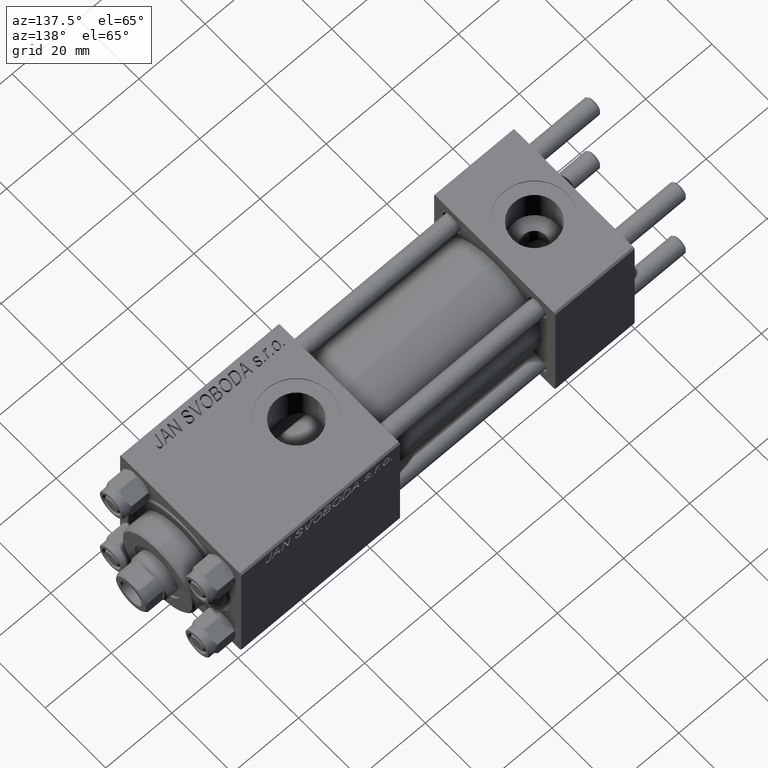
[diagram: clean part render]
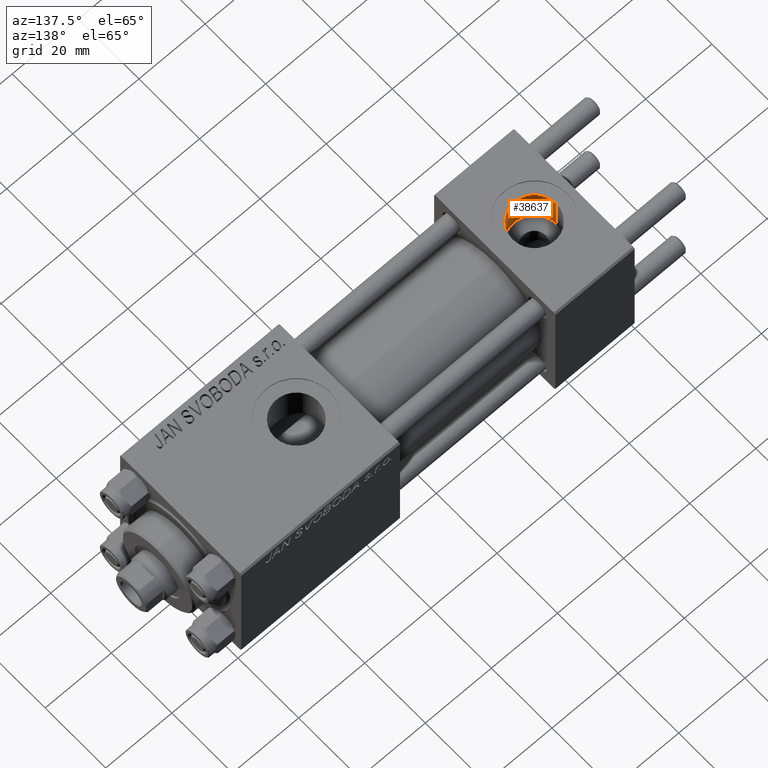
[diagram: same view with one face highlighted and labeled with its STEP entity id]
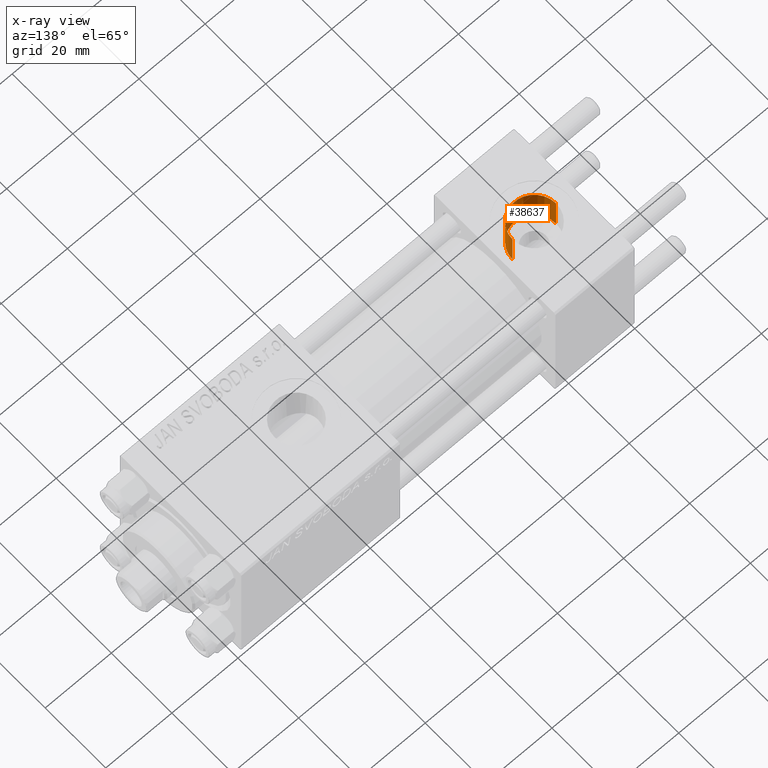
[diagram: x-ray of the same camera — body ghosted, the highlighted face saturated]
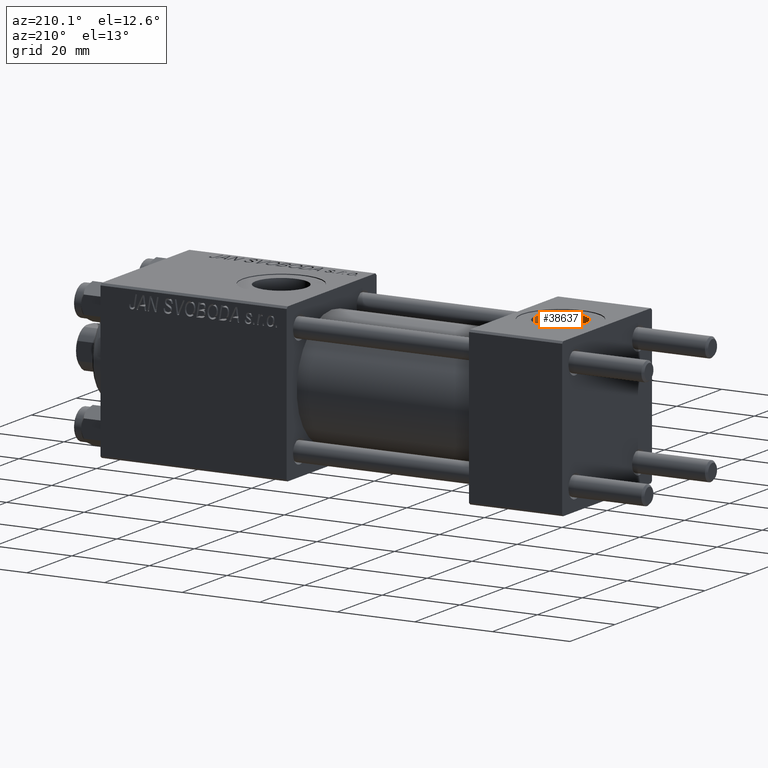
[diagram: same view with one face highlighted and labeled with its STEP entity id]
A machine part, auxiliary view. The second image highlights one B-rep face of the part: STEP entity #38637.
The next image is the same camera in x-ray: the body ghosted, the highlighted face saturated — about 0% of this face is hidden behind the body in this view.
A second angle (auxiliary view) of the same face is appended — the face is thin or edge-on in the first view.
In plain terms, the highlighted cylindrical surface (edge-blend (fillet) strip) has radius 6.58 mm, axis along (0, 0, 1).
Its self-contained STEP definition (entity closure, byte-faithful):
#734 = EDGE_CURVE ( 'NONE', #13972, #31578, #22303, .T. ) ;
#1246 = AXIS2_PLACEMENT_3D ( 'NONE', #37788, #26477, #3291 ) ;
#1508 = EDGE_LOOP ( 'NONE', ( #4704, #35749, #41008, #26232 ) ) ;
#2460 = VECTOR ( 'NONE', #11462, 1000.000000000000000 ) ;
#3291 = DIRECTION ( 'NONE',  ( 1.000000000000000000, 0.000000000000000000, 0.000000000000000000 ) ) ;
#3665 = CARTESIAN_POINT ( 'NONE',  ( 18.57999999999999829, 1.540743955509788682E-30, 9.199999999999995737 ) ) ;
#4638 = DIRECTION ( 'NONE',  ( -0.000000000000000000, -0.000000000000000000, 1.000000000000000000 ) ) ;
#4704 = ORIENTED_EDGE ( 'NONE', *, *, #16804, .T. ) ;
#4879 = CARTESIAN_POINT ( 'NONE',  ( 12.00000000000000000, 1.540743955509788682E-30, 9.199999999999995737 ) ) ;
#7736 = CARTESIAN_POINT ( 'NONE',  ( 5.420000000000000817, 8.058175938389596335E-16, 9.165987261146492315 ) ) ;
#8954 = EDGE_CURVE ( 'NONE', #46472, #31578, #31588, .T. ) ;
#9633 = AXIS2_PLACEMENT_3D ( 'NONE', #4879, #4638, #27822 ) ;
#10944 = DIRECTION ( 'NONE',  ( 0.000000000000000000, 0.000000000000000000, 1.000000000000000000 ) ) ;
#11462 = DIRECTION ( 'NONE',  ( -0.000000000000000000, -0.000000000000000000, 1.000000000000000000 ) ) ;
#11704 = CIRCLE ( 'NONE', #1246, 6.579999999999999183 ) ;
#12757 = CARTESIAN_POINT ( 'NONE',  ( 18.57999999999999829, 1.540743955509788682E-30, 9.165987261146492315 ) ) ;
#13972 = VERTEX_POINT ( 'NONE', #12757 ) ;
#16804 = EDGE_CURVE ( 'NONE', #13972, #17873, #11704, .T. ) ;
#17873 = VERTEX_POINT ( 'NONE', #7736 ) ;
#19754 = CYLINDRICAL_SURFACE ( 'NONE', #9633, 6.579999999999999183 ) ;
#20243 = FACE_OUTER_BOUND ( 'NONE', #1508, .T. ) ;
#22303 = LINE ( 'NONE', #3665, #2460 ) ;
#26231 = CARTESIAN_POINT ( 'NONE',  ( 5.420000000000000817, 8.058175938389596335E-16, 9.199999999999995737 ) ) ;
#26232 = ORIENTED_EDGE ( 'NONE', *, *, #734, .F. ) ;
#26477 = DIRECTION ( 'NONE',  ( -0.000000000000000000, -0.000000000000000000, -1.000000000000000000 ) ) ;
#27822 = DIRECTION ( 'NONE',  ( 1.000000000000000000, 0.000000000000000000, 0.000000000000000000 ) ) ;
#27875 = CARTESIAN_POINT ( 'NONE',  ( 5.420000000000000817, 8.058175938389596335E-16, 19.79999999999999716 ) ) ;
#31578 = VERTEX_POINT ( 'NONE', #41362 ) ;
#31588 = CIRCLE ( 'NONE', #31699, 6.579999999999999183 ) ;
#31699 = AXIS2_PLACEMENT_3D ( 'NONE', #44437, #10944, #44684 ) ;
#35749 = ORIENTED_EDGE ( 'NONE', *, *, #39817, .T. ) ;
#37544 = DIRECTION ( 'NONE',  ( -0.000000000000000000, -0.000000000000000000, 1.000000000000000000 ) ) ;
#37788 = CARTESIAN_POINT ( 'NONE',  ( 12.00000000000000000, 1.540743955509788682E-30, 9.165987261146492315 ) ) ;
#38637 = ADVANCED_FACE ( 'NONE', ( #20243 ), #19754, .F. ) ;
#39817 = EDGE_CURVE ( 'NONE', #17873, #46472, #49379, .T. ) ;
#40220 = VECTOR ( 'NONE', #37544, 1000.000000000000000 ) ;
#41008 = ORIENTED_EDGE ( 'NONE', *, *, #8954, .T. ) ;
#41362 = CARTESIAN_POINT ( 'NONE',  ( 18.57999999999999829, 1.540743955509788682E-30, 19.79999999999999716 ) ) ;
#44437 = CARTESIAN_POINT ( 'NONE',  ( 12.00000000000000000, 1.540743955509788682E-30, 19.79999999999999716 ) ) ;
#44684 = DIRECTION ( 'NONE',  ( 1.000000000000000000, 0.000000000000000000, 0.000000000000000000 ) ) ;
#46472 = VERTEX_POINT ( 'NONE', #27875 ) ;
#49379 = LINE ( 'NONE', #26231, #40220 ) ;